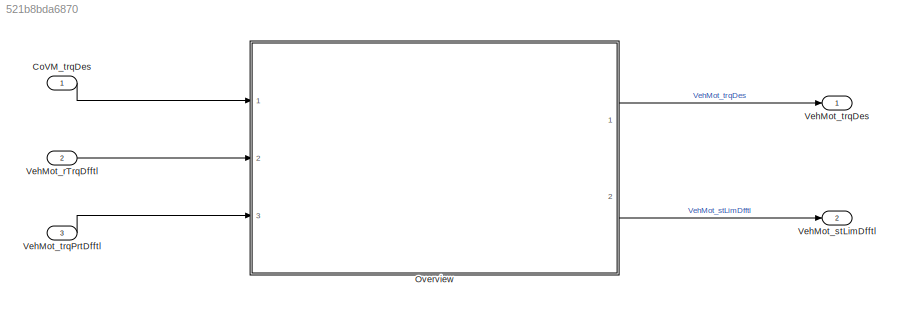
MODEL slx_521b8bda6870
KIND model
CONFIG AbsTol = auto
CONFIG EnableMultiTasking = off
CONFIG FixedStep = 0.001
CONFIG MaxStep = auto
CONFIG MinStep = auto
CONFIG RelTol = 1e-3
CONFIG SampleTimeConstraint = Unconstrained
CONFIG Solver = FixedStepDiscrete
CONFIG SolverName = FixedStepDiscrete
CONFIG StartTime = 0.0
CONFIG StopTime = Inf
BLOCK [Inport] CoVM_trqDes
  Description = Propulsion torque order after ESP-torque intervention coordination (wheel torque)
  IconDisplay = Port number
  OutDataTypeStr = Torq
  OutMax = 3000
  OutMin = -3000
  PortDimensions = [1 1]
  Unit = Nm
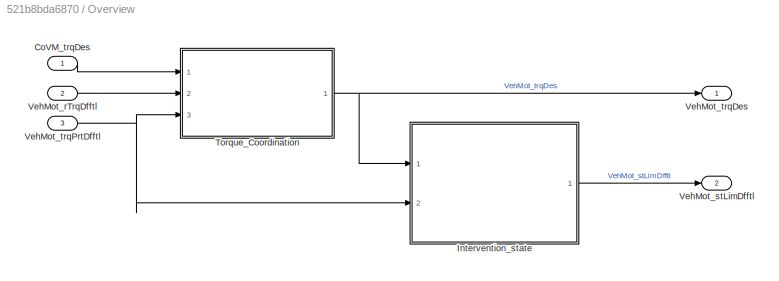
BLOCK [SubSystem] Overview
  Ports = [3, 2]
  RequestExecContextInheritance = off
BLOCK [Inport] Overview/CoVM_trqDes
  IconDisplay = Port number
  Tag = Nm
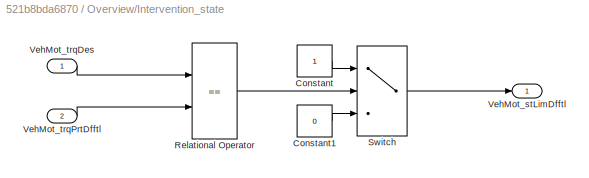
BLOCK [SubSystem] Overview/Intervention_state
  Ports = [2, 1]
  RequestExecContextInheritance = off
BLOCK [Constant] Overview/Intervention_state/Constant
  OutDataTypeStr = Inherit: Inherit via back propagation
BLOCK [Constant] Overview/Intervention_state/Constant1
  OutDataTypeStr = Inherit: Inherit via back propagation
  Value = 0
BLOCK [RelationalOperator] Overview/Intervention_state/Relational Operator
  Operator = ==
  OutDataTypeStr = boolean
  Ports = [2, 1]
  RndMeth = Simplest
BLOCK [Switch] Overview/Intervention_state/Switch
  Criteria = u2 ~= 0
  SaturateOnIntegerOverflow = off
BLOCK [Outport] Overview/Intervention_state/VehMot_stLimDfftl
  IconDisplay = Port number
BLOCK [Inport] Overview/Intervention_state/VehMot_trqDes
  IconDisplay = Port number
BLOCK [Inport] Overview/Intervention_state/VehMot_trqPrtDfftl
  IconDisplay = Port number
  Port = 2
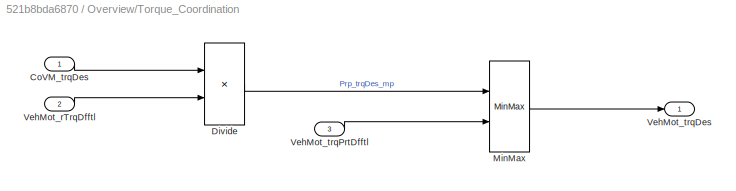
BLOCK [SubSystem] Overview/Torque_Coordination
  Ports = [3, 1]
  RequestExecContextInheritance = off
BLOCK [Inport] Overview/Torque_Coordination/CoVM_trqDes
  IconDisplay = Port number
  Tag = Nm
BLOCK [Product] Overview/Torque_Coordination/Divide
  InputSameDT = off
  Inputs = */
  OutDataTypeStr = Inherit: Inherit via back propagation
  Ports = [2, 1]
  RndMeth = Floor
  SaturateOnIntegerOverflow = off
BLOCK [MinMax] Overview/Torque_Coordination/MinMax
  Inputs = 2
  Ports = [2, 1]
  SaturateOnIntegerOverflow = off
BLOCK [Inport] Overview/Torque_Coordination/VehMot_rTrqDfftl
  IconDisplay = Port number
  Port = 2
  Tag = -
BLOCK [Outport] Overview/Torque_Coordination/VehMot_trqDes
  IconDisplay = Port number
BLOCK [Inport] Overview/Torque_Coordination/VehMot_trqPrtDfftl
  IconDisplay = Port number
  Port = 3
  Tag = Nm
BLOCK [Inport] Overview/VehMot_rTrqDfftl
  IconDisplay = Port number
  Port = 2
BLOCK [Outport] Overview/VehMot_stLimDfftl
  IconDisplay = Port number
  Port = 2
BLOCK [Outport] Overview/VehMot_trqDes
  IconDisplay = Port number
  Tag = Nm
BLOCK [Inport] Overview/VehMot_trqPrtDfftl
  IconDisplay = Port number
  Port = 3
  Tag = Nm
BLOCK [Inport] VehMot_rTrqDfftl
  Description = Torque ratio of differential
  IconDisplay = Port number
  OutDataTypeStr = Ratio_100
  OutMax = 100
  OutMin = -100
  Port = 2
  PortDimensions = [1 1]
BLOCK [Outport] VehMot_stLimDfftl
  IconDisplay = Port number
  Port = 2
BLOCK [Outport] VehMot_trqDes
  IconDisplay = Port number
BLOCK [Inport] VehMot_trqPrtDfftl
  Description = Differential protection torque
  IconDisplay = Port number
  OutDataTypeStr = Torq
  OutMax = 3000
  OutMin = -3000
  Port = 3
  PortDimensions = [1 1]
  Unit = Nm
LINE CoVM_trqDes:1 -> Overview:1
LINE Overview/CoVM_trqDes:1 -> Overview/Torque_Coordination:1
LINE Overview/Intervention_state/Constant1:1 -> Overview/Intervention_state/Switch:3
LINE Overview/Intervention_state/Constant:1 -> Overview/Intervention_state/Switch:1
LINE Overview/Intervention_state/Relational Operator:1 -> Overview/Intervention_state/Switch:2
LINE Overview/Intervention_state/Switch:1 -> Overview/Intervention_state/VehMot_stLimDfftl:1
LINE Overview/Intervention_state/VehMot_trqDes:1 -> Overview/Intervention_state/Relational Operator:1
LINE Overview/Intervention_state/VehMot_trqPrtDfftl:1 -> Overview/Intervention_state/Relational Operator:2
LINE Overview/Intervention_state:1 -> Overview/VehMot_stLimDfftl:1
LINE Overview/Torque_Coordination/CoVM_trqDes:1 -> Overview/Torque_Coordination/Divide:1
LINE Overview/Torque_Coordination/Divide:1 -> Overview/Torque_Coordination/MinMax:1
LINE Overview/Torque_Coordination/MinMax:1 -> Overview/Torque_Coordination/VehMot_trqDes:1
LINE Overview/Torque_Coordination/VehMot_rTrqDfftl:1 -> Overview/Torque_Coordination/Divide:2
LINE Overview/Torque_Coordination/VehMot_trqPrtDfftl:1 -> Overview/Torque_Coordination/MinMax:2
NET Overview/Torque_Coordination:1 -> Overview/Intervention_state:1, Overview/VehMot_trqDes:1
LINE Overview/VehMot_rTrqDfftl:1 -> Overview/Torque_Coordination:2
NET Overview/VehMot_trqPrtDfftl:1 -> Overview/Intervention_state:2, Overview/Torque_Coordination:3
LINE Overview:1 -> VehMot_trqDes:1
LINE Overview:2 -> VehMot_stLimDfftl:1
LINE VehMot_rTrqDfftl:1 -> Overview:2
LINE VehMot_trqPrtDfftl:1 -> Overview:3
note: NET lines group one-source signal fan-out (src -> all destinations, sorted); 1:1 wires keep LINE
